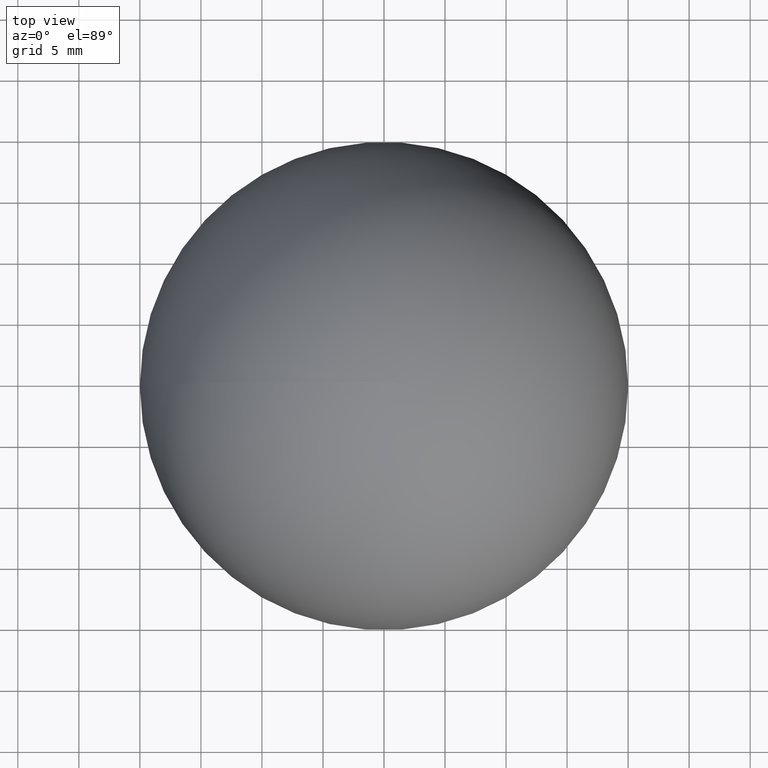
[diagram: clean part render]
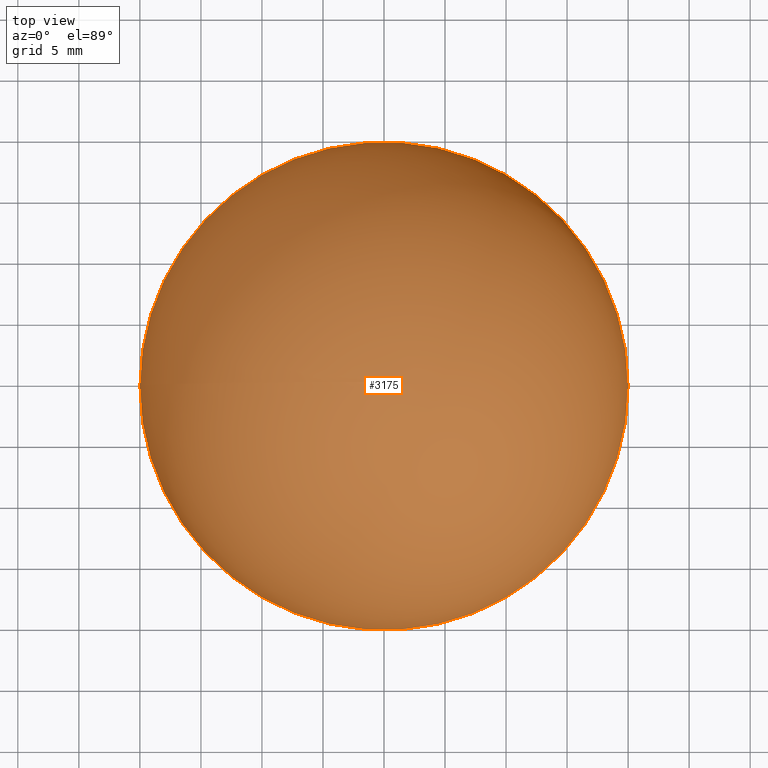
[diagram: same view with one face highlighted and labeled with its STEP entity id]
A machine part, top view. The second image highlights one B-rep face of the part: STEP entity #3175.
In plain terms, the highlighted spherical surface has radius 20 mm.
Its self-contained STEP definition (entity closure, byte-faithful):
#1098 = CARTESIAN_POINT ( 'NONE',  ( 20.00000000000000000, 2.449293598294706513E-15, 1.396592535537253342E-13 ) ) ;
#1353 = DIRECTION ( 'NONE',  ( -6.982962677686266711E-15, 0.000000000000000000, 1.000000000000000000 ) ) ;
#2358 = CIRCLE ( 'NONE', #8772, 20.00000000000000000 ) ;
#2464 = DIRECTION ( 'NONE',  ( -1.000000000000000000, 0.000000000000000000, -6.982962677686266711E-15 ) ) ;
#2737 = EDGE_LOOP ( 'NONE', ( #9022, #4105 ) ) ;
#2746 = VERTEX_POINT ( 'NONE', #7140 ) ;
#2999 = CARTESIAN_POINT ( 'NONE',  ( 0.000000000000000000, 0.000000000000000000, 0.000000000000000000 ) ) ;
#3175 = ADVANCED_FACE ( 'NONE', ( #3340 ), #7514, .T. ) ;
#3340 = FACE_OUTER_BOUND ( 'NONE', #2737, .T. ) ;
#4105 = ORIENTED_EDGE ( 'NONE', *, *, #4354, .F. ) ;
#4310 = CARTESIAN_POINT ( 'NONE',  ( 0.000000000000000000, 0.000000000000000000, 0.000000000000000000 ) ) ;
#4354 = EDGE_CURVE ( 'NONE', #6233, #2746, #7026, .T. ) ;
#5298 = DIRECTION ( 'NONE',  ( -1.000000000000000000, 0.000000000000000000, -6.982962677686266711E-15 ) ) ;
#6233 = VERTEX_POINT ( 'NONE', #1098 ) ;
#6462 = EDGE_CURVE ( 'NONE', #2746, #6233, #2358, .T. ) ;
#7026 = CIRCLE ( 'NONE', #8196, 20.00000000000000000 ) ;
#7140 = CARTESIAN_POINT ( 'NONE',  ( -20.00000000000000000, 0.000000000000000000, -1.396592535537253342E-13 ) ) ;
#7162 = AXIS2_PLACEMENT_3D ( 'NONE', #4310, #1353, #9723 ) ;
#7514 = SPHERICAL_SURFACE ( 'NONE', #7162, 20.00000000000000000 ) ;
#8196 = AXIS2_PLACEMENT_3D ( 'NONE', #9106, #8403, #5298 ) ;
#8403 = DIRECTION ( 'NONE',  ( 6.982962677686266711E-15, 0.000000000000000000, -1.000000000000000000 ) ) ;
#8772 = AXIS2_PLACEMENT_3D ( 'NONE', #2999, #9342, #2464 ) ;
#9022 = ORIENTED_EDGE ( 'NONE', *, *, #6462, .F. ) ;
#9106 = CARTESIAN_POINT ( 'NONE',  ( 0.000000000000000000, 0.000000000000000000, 0.000000000000000000 ) ) ;
#9342 = DIRECTION ( 'NONE',  ( 6.982962677686266711E-15, 0.000000000000000000, -1.000000000000000000 ) ) ;
#9723 = DIRECTION ( 'NONE',  ( -1.000000000000000000, 0.000000000000000000, -6.982962677686266711E-15 ) ) ;